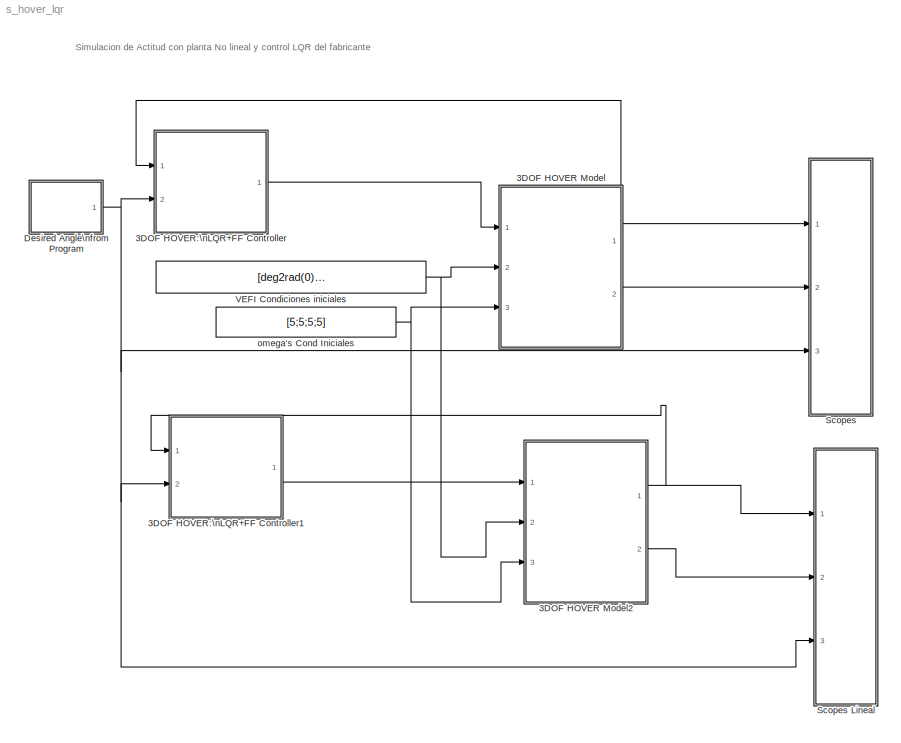
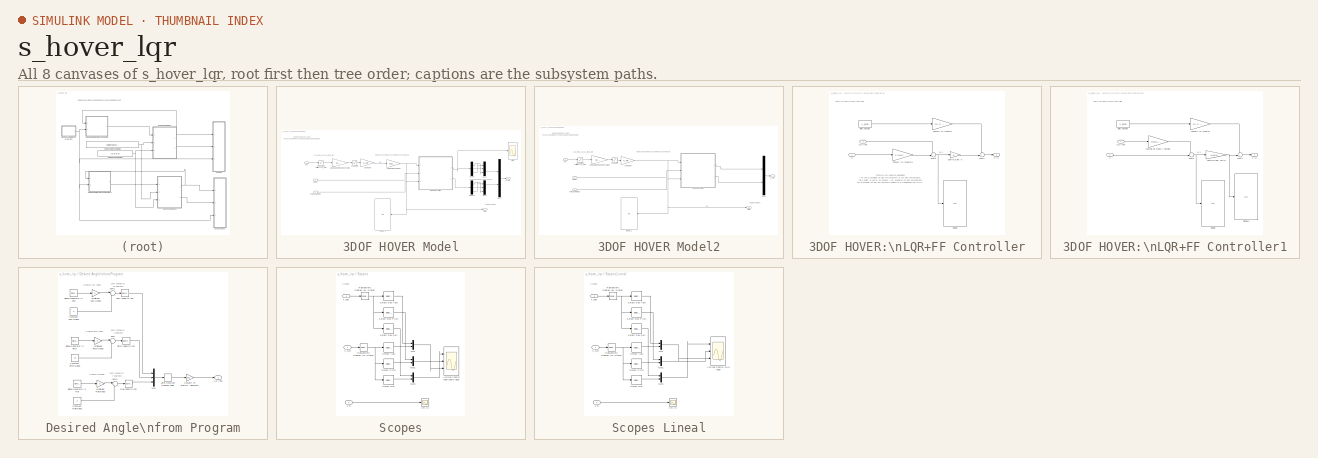
[diagram: thumbnail index - all 8 canvases of the model, root first then tree order]
MODEL s_hover_lqr
KIND model
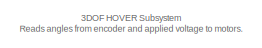
[diagram: 3DOF HOVER Model - part 1/2, top left region]
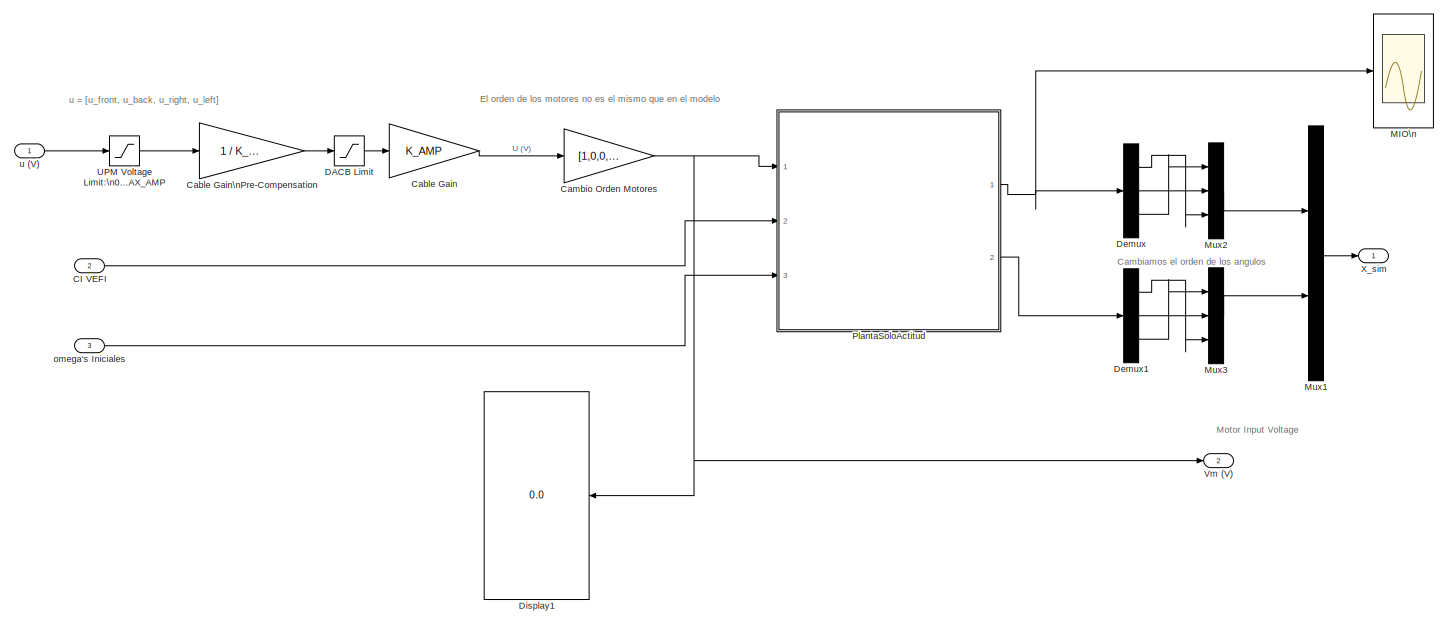
[diagram: 3DOF HOVER Model - part 2/2, most of the canvas]
BLOCK [SubSystem] 3DOF HOVER Model
  FunctionWithSeparateData = off
  MaskHideContents = off
  MinAlgLoopOccurrences = off
  Opaque = off
  Ports = [3, 2]
  PropExecContextOutsideSubsystem = off
  RTWSystemCode = Auto
  RequestExecContextInheritance = off
  SID = 1
BLOCK [Inport] 3DOF HOVER Model/CI VEFI
  IconDisplay = Port number
  Port = 2
  SID = 64
BLOCK [Gain] 3DOF HOVER Model/Cable Gain
  Gain = K_AMP
  Multiplication = Matrix(K*u)
  SID = 3
BLOCK [Gain] 3DOF HOVER Model/Cable Gain\nPre-Compensation
  Gain = 1 / K_AMP
  Multiplication = Matrix(K*u)
  SID = 4
BLOCK [Gain] 3DOF HOVER Model/Cambio Orden Motores
  Gain = [1,0,0,0;0,0,1,0;0,1,0,0;0,0,0,1]
  Multiplication = Matrix(K*u)
  SID = 101
BLOCK [Saturate] 3DOF HOVER Model/DACB Limit
  InputPortMap = u0
  LowerLimit = -VMAX_DAC
  Ports = [1, 1]
  SID = 5
  UpperLimit = VMAX_DAC
BLOCK [Demux] 3DOF HOVER Model/Demux
  DisplayOption = bar
  Outputs = 3
  Ports = [1, 3]
  SID = 86
BLOCK [Demux] 3DOF HOVER Model/Demux1
  DisplayOption = bar
  Outputs = 3
  Ports = [1, 3]
  SID = 89
BLOCK [Display] 3DOF HOVER Model/Display1
  Decimation = 1
  Lockdown = off
  Ports = [1]
  SID = 102
BLOCK [Scope] 3DOF HOVER Model/MIO\n
  DataFormat = Array
  Floating = off
  LimitDataPoints = off
  NumInputPorts = 1
  Ports = [1]
  SID = 92
  SampleTime = 0
  SaveName = ScopeData1
  TickLabels = on
  TimeRange = 20
  YMax = 0.0075
  YMin = 0.00325
BLOCK [Mux] 3DOF HOVER Model/Mux1
  DisplayOption = bar
  Inputs = 2
  Ports = [2, 1]
  SID = 10
BLOCK [Mux] 3DOF HOVER Model/Mux2
  DisplayOption = bar
  Inputs = 3
  Ports = [3, 1]
  SID = 88
BLOCK [Mux] 3DOF HOVER Model/Mux3
  DisplayOption = bar
  Inputs = 3
  Ports = [3, 1]
  SID = 90
BLOCK [ModelReference] 3DOF HOVER Model/PlantaSoloActitud
  CopyOfModelName = PlantaSoloActitud
  DefaultDataLogging = on
  ModelNameDialog = PlantaSoloActitud
  ModelReferenceVersion = 1.26
  Ports = [3, 2]
  SID = 63
BLOCK [Saturate] 3DOF HOVER Model/UPM Voltage Limit:\n0 to VMAX_AMP
  InputPortMap = u0
  LowerLimit = 0
  Ports = [1, 1]
  SID = 12
  UpperLimit = VMAX_AMP
BLOCK [Outport] 3DOF HOVER Model/Vm (V)
  IconDisplay = Port number
  Port = 2
  SID = 14
BLOCK [Outport] 3DOF HOVER Model/X_sim
  IconDisplay = Port number
  SID = 13
BLOCK [Inport] 3DOF HOVER Model/omega's Iniciales
  IconDisplay = Port number
  Port = 3
  SID = 65
BLOCK [Inport] 3DOF HOVER Model/u (V)
  IconDisplay = Port number
  SID = 2
BLOCK [SubSystem] 3DOF HOVER Model2
  FunctionWithSeparateData = off
  MaskHideContents = off
  MinAlgLoopOccurrences = off
  Opaque = off
  Ports = [3, 2]
  PropExecContextOutsideSubsystem = off
  RTWSystemCode = Auto
  RequestExecContextInheritance = off
  SID = 305
BLOCK [Inport] 3DOF HOVER Model2/CI VEFI
  IconDisplay = Port number
  Port = 2
  SID = 307
BLOCK [Gain] 3DOF HOVER Model2/Cable Gain
  Gain = K_AMP
  Multiplication = Matrix(K*u)
  SID = 309
BLOCK [Gain] 3DOF HOVER Model2/Cable Gain\nPre-Compensation
  Gain = 1 / K_AMP
  Multiplication = Matrix(K*u)
  SID = 310
BLOCK [Saturate] 3DOF HOVER Model2/DACB Limit
  InputPortMap = u0
  LowerLimit = -VMAX_DAC
  Ports = [1, 1]
  SID = 312
  UpperLimit = VMAX_DAC
BLOCK [Display] 3DOF HOVER Model2/Display1
  Decimation = 1
  Lockdown = off
  Ports = [1]
  SID = 337
BLOCK [Mux] 3DOF HOVER Model2/Mux1
  DisplayOption = bar
  Inputs = 2
  Ports = [2, 1]
  SID = 320
BLOCK [ModelReference] 3DOF HOVER Model2/PlantaSoloActitud
  CopyOfModelName = PlantaSoloActitud
  DefaultDataLogging = off
  ModelNameDialog = PlantaSoloActitud
  ModelReferenceVersion = 1.26
  Ports = [3, 2]
  SID = 327
BLOCK [Saturate] 3DOF HOVER Model2/UPM Voltage Limit:\n0 to VMAX_AMP
  InputPortMap = u0
  LowerLimit = 0
  Ports = [1, 1]
  SID = 328
  UpperLimit = VMAX_AMP
BLOCK [Outport] 3DOF HOVER Model2/Vm (V)
  IconDisplay = Port number
  Port = 2
  SID = 330
BLOCK [Outport] 3DOF HOVER Model2/X_sim
  IconDisplay = Port number
  SID = 329
BLOCK [Inport] 3DOF HOVER Model2/omega's Iniciales
  IconDisplay = Port number
  Port = 3
  SID = 308
BLOCK [Inport] 3DOF HOVER Model2/u (V)
  IconDisplay = Port number
  SID = 306
BLOCK [SubSystem] 3DOF HOVER:\nLQR+FF Controller
  FunctionWithSeparateData = off
  MaskHideContents = off
  MinAlgLoopOccurrences = off
  Opaque = off
  Ports = [2, 1]
  PropExecContextOutsideSubsystem = off
  RTWSystemCode = Auto
  RequestExecContextInheritance = off
  SID = 15
BLOCK [Constant] 3DOF HOVER:\nLQR+FF Controller/Bias Voltage
  SID = 18
  Value = V_bias
BLOCK [Gain] 3DOF HOVER:\nLQR+FF Controller/Control Gain: K
  Gain = K
  Multiplication = Matrix(K*u)
  OutDataTypeStr = Inherit: Inherit via internal rule
  ParamDataTypeStr = Inherit: Inherit via internal rule
  SID = 19
  SaturateOnIntegerOverflow = off
BLOCK [Gain] 3DOF HOVER:\nLQR+FF Controller/Convert to \nVector
  Gain = [1; 1; 1; 1]
  Multiplication = Matrix(K*u)
  OutDataTypeStr = Inherit: Inherit via internal rule
  ParamDataTypeStr = Inherit: Inherit via internal rule
  SID = 20
  SaturateOnIntegerOverflow = off
BLOCK [Gain] 3DOF HOVER:\nLQR+FF Controller/Convert to \nVector1
  Gain = [-1,0,0,0,0,0;0,1,0,0,0,0;0,0,1,0,0,0;0,0,0,-1,0,0;0,0,0,0,1,0;0,0,0,0,0,1]
  Multiplication = Matrix(K*u)
  OutDataTypeStr = Inherit: Inherit via internal rule
  ParamDataTypeStr = Inherit: Inherit via internal rule
  SID = 97
  SaturateOnIntegerOverflow = off
BLOCK [Display] 3DOF HOVER:\nLQR+FF Controller/Display
  Decimation = 1
  Lockdown = off
  Ports = [1]
  SID = 98
BLOCK [Sum] 3DOF HOVER:\nLQR+FF Controller/Sum4
  IconShape = round
  InputSameDT = off
  Inputs = ++|
  OutDataTypeStr = Inherit: Inherit via internal rule
  Ports = [2, 1]
  SID = 21
  SaturateOnIntegerOverflow = off
BLOCK [Sum] 3DOF HOVER:\nLQR+FF Controller/Sum5
  IconShape = round
  InputSameDT = off
  Inputs = +-|
  OutDataTypeStr = Inherit: Inherit via internal rule
  Ports = [2, 1]
  SID = 22
  SaturateOnIntegerOverflow = off
BLOCK [Inport] 3DOF HOVER:\nLQR+FF Controller/X
  IconDisplay = Port number
  SID = 16
BLOCK [Inport] 3DOF HOVER:\nLQR+FF Controller/X_d (rad)
  IconDisplay = Port number
  Port = 2
  SID = 17
BLOCK [Outport] 3DOF HOVER:\nLQR+FF Controller/u (V)
  IconDisplay = Port number
  SID = 23
BLOCK [SubSystem] 3DOF HOVER:\nLQR+FF Controller1
  FunctionWithSeparateData = off
  MaskHideContents = off
  MinAlgLoopOccurrences = off
  Opaque = off
  Ports = [2, 1]
  PropExecContextOutsideSubsystem = off
  RTWSystemCode = Auto
  RequestExecContextInheritance = off
  SID = 283
BLOCK [Constant] 3DOF HOVER:\nLQR+FF Controller1/Bias Voltage
  SID = 286
  Value = V_bias
BLOCK [Gain] 3DOF HOVER:\nLQR+FF Controller1/Cambio de orden y sentido
  Gain = [0,0,1,0,0,0;0,1,0,0,0,0;-1,0,0,0,0,0;0,0,0,0,0,1;0,0,0,0,1,0;0,0,0,-1,0,0]
  Multiplication = Matrix(K*u)
  OutDataTypeStr = Inherit: Inherit via internal rule
  ParamDataTypeStr = Inherit: Inherit via internal rule
  SID = 335
  SaturateOnIntegerOverflow = off
BLOCK [Gain] 3DOF HOVER:\nLQR+FF Controller1/Control Gain: KMIO
  Gain = KMIO
  Multiplication = Matrix(K*u) (u vector)
  OutDataTypeStr = Inherit: Inherit via internal rule
  ParamDataTypeStr = Inherit: Inherit via internal rule
  SID = 287
  SaturateOnIntegerOverflow = off
BLOCK [Gain] 3DOF HOVER:\nLQR+FF Controller1/Convert to \nVector
  Gain = [1; 1; 1; 1]
  Multiplication = Matrix(K*u)
  OutDataTypeStr = Inherit: Inherit via internal rule
  ParamDataTypeStr = Inherit: Inherit via internal rule
  SID = 288
  SaturateOnIntegerOverflow = off
BLOCK [Display] 3DOF HOVER:\nLQR+FF Controller1/Display
  Decimation = 1
  Lockdown = off
  Ports = [1]
  SID = 290
BLOCK [Display] 3DOF HOVER:\nLQR+FF Controller1/Display1
  Decimation = 1
  Lockdown = off
  Ports = [1]
  SID = 338
BLOCK [Sum] 3DOF HOVER:\nLQR+FF Controller1/Sum4
  IconShape = round
  InputSameDT = off
  Inputs = ++|
  OutDataTypeStr = Inherit: Inherit via internal rule
  Ports = [2, 1]
  SID = 291
  SaturateOnIntegerOverflow = off
BLOCK [Sum] 3DOF HOVER:\nLQR+FF Controller1/Sum5
  IconShape = round
  InputSameDT = off
  Inputs = +-|
  OutDataTypeStr = Inherit: Inherit via internal rule
  Ports = [2, 1]
  SID = 292
  SaturateOnIntegerOverflow = off
BLOCK [Inport] 3DOF HOVER:\nLQR+FF Controller1/X
  IconDisplay = Port number
  SID = 284
BLOCK [Inport] 3DOF HOVER:\nLQR+FF Controller1/X_d (rad)
  IconDisplay = Port number
  Port = 2
  SID = 285
BLOCK [Outport] 3DOF HOVER:\nLQR+FF Controller1/u (V)
  IconDisplay = Port number
  SID = 293
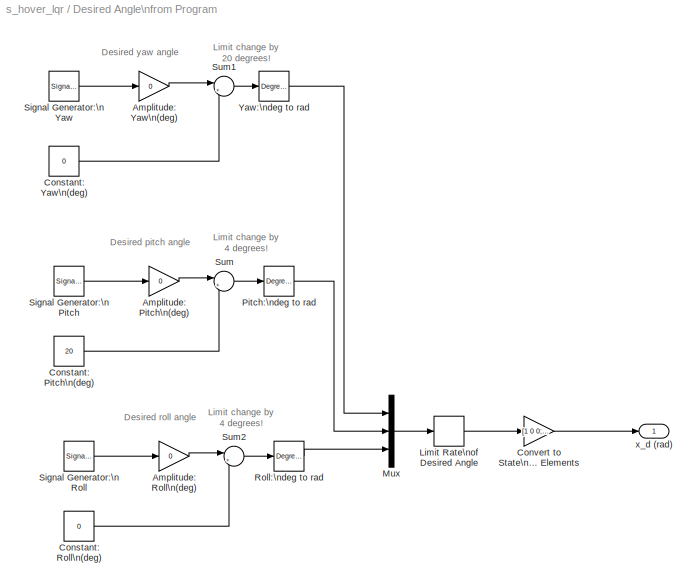
BLOCK [SubSystem] Desired Angle\nfrom Program
  FunctionWithSeparateData = off
  MaskHideContents = off
  MinAlgLoopOccurrences = off
  Opaque = off
  Ports = [0, 1]
  PropExecContextOutsideSubsystem = off
  RTWSystemCode = Auto
  RequestExecContextInheritance = off
  SID = 24
BLOCK [Gain] Desired Angle\nfrom Program/Amplitude: Pitch\n(deg)
  Gain = 0
  OutDataTypeStr = Inherit: Inherit via internal rule
  ParamDataTypeStr = Inherit: Inherit via internal rule
  SID = 25
  SaturateOnIntegerOverflow = off
BLOCK [Gain] Desired Angle\nfrom Program/Amplitude: Roll\n(deg)
  Gain = 0
  OutDataTypeStr = Inherit: Inherit via internal rule
  ParamDataTypeStr = Inherit: Inherit via internal rule
  SID = 26
  SaturateOnIntegerOverflow = off
BLOCK [Gain] Desired Angle\nfrom Program/Amplitude: Yaw\n(deg)
  Gain = 0
  OutDataTypeStr = Inherit: Inherit via internal rule
  ParamDataTypeStr = Inherit: Inherit via internal rule
  SID = 27
  SaturateOnIntegerOverflow = off
BLOCK [Constant] Desired Angle\nfrom Program/Constant: Pitch\n(deg)
  SID = 28
  Value = 20
BLOCK [Constant] Desired Angle\nfrom Program/Constant: Roll\n(deg)
  SID = 29
  Value = 0
BLOCK [Constant] Desired Angle\nfrom Program/Constant: Yaw\n(deg)
  SID = 30
  Value = 0
BLOCK [Gain] Desired Angle\nfrom Program/Convert to State\nwith 6 Elements
  Gain = [1 0 0; 0 1 0; 0 0 1; 0 0 0; 0 0 0; 0 0 0];
  Multiplication = Matrix(K*u)
  OutDataTypeStr = Inherit: Inherit via internal rule
  ParamDataTypeStr = Inherit: Inherit via internal rule
  SID = 31
  SaturateOnIntegerOverflow = off
BLOCK [RateLimiter] Desired Angle\nfrom Program/Limit Rate\nof Desired Angle
  FallingSlewLimit = -CMD_RATE_LIMIT
  RisingSlewLimit = CMD_RATE_LIMIT
  SID = 32
BLOCK [Mux] Desired Angle\nfrom Program/Mux
  DisplayOption = bar
  Inputs = 3
  Ports = [3, 1]
  SID = 33
BLOCK [Reference] Desired Angle\nfrom Program/Pitch:\ndeg to rad  REF=simulink_extras/Transformations/Degrees to\nRadians
  FunctionWithSeparateData = off
  GeneratePreprocessorConditionals = off
  Ports = [1, 1]
  RTWMemSecDataConstants = Inherit from model
  RTWMemSecDataInternal = Inherit from model
  RTWMemSecDataParameters = Inherit from model
  RTWMemSecFuncExecute = Inherit from model
  RTWMemSecFuncInitTerm = Inherit from model
  SID = 34
  ShowPortLabels = FromPortIcon
  SourceBlock = simulink_extras/Transformations/Degrees to\nRadians
  SourceType = DegreesToRadians
  SystemSampleTime = -1
BLOCK [Reference] Desired Angle\nfrom Program/Roll:\ndeg to rad  REF=simulink_extras/Transformations/Degrees to\nRadians
  FunctionWithSeparateData = off
  GeneratePreprocessorConditionals = off
  Ports = [1, 1]
  RTWMemSecDataConstants = Inherit from model
  RTWMemSecDataInternal = Inherit from model
  RTWMemSecDataParameters = Inherit from model
  RTWMemSecFuncExecute = Inherit from model
  RTWMemSecFuncInitTerm = Inherit from model
  SID = 35
  ShowPortLabels = FromPortIcon
  SourceBlock = simulink_extras/Transformations/Degrees to\nRadians
  SourceType = DegreesToRadians
  SystemSampleTime = -1
BLOCK [SignalGenerator] Desired Angle\nfrom Program/Signal Generator:\nPitch
  Frequency = 0.0000001
  Ports = [0, 1]
  SID = 36
  WaveForm = square
BLOCK [SignalGenerator] Desired Angle\nfrom Program/Signal Generator:\nRoll
  Frequency = 0.08
  Ports = [0, 1]
  SID = 37
  WaveForm = square
BLOCK [SignalGenerator] Desired Angle\nfrom Program/Signal Generator:\nYaw
  Frequency = 0.04
  Ports = [0, 1]
  SID = 38
  WaveForm = square
BLOCK [Sum] Desired Angle\nfrom Program/Sum
  IconShape = round
  InputSameDT = off
  Inputs = |++
  OutDataTypeStr = Inherit: Inherit via internal rule
  Ports = [2, 1]
  SID = 39
  SaturateOnIntegerOverflow = off
BLOCK [Sum] Desired Angle\nfrom Program/Sum1
  IconShape = round
  InputSameDT = off
  Inputs = |++
  OutDataTypeStr = Inherit: Inherit via internal rule
  Ports = [2, 1]
  SID = 40
  SaturateOnIntegerOverflow = off
BLOCK [Sum] Desired Angle\nfrom Program/Sum2
  IconShape = round
  InputSameDT = off
  Inputs = |++
  OutDataTypeStr = Inherit: Inherit via internal rule
  Ports = [2, 1]
  SID = 41
  SaturateOnIntegerOverflow = off
BLOCK [Reference] Desired Angle\nfrom Program/Yaw:\ndeg to rad  REF=simulink_extras/Transformations/Degrees to\nRadians
  FunctionWithSeparateData = off
  GeneratePreprocessorConditionals = off
  Ports = [1, 1]
  RTWMemSecDataConstants = Inherit from model
  RTWMemSecDataInternal = Inherit from model
  RTWMemSecDataParameters = Inherit from model
  RTWMemSecFuncExecute = Inherit from model
  RTWMemSecFuncInitTerm = Inherit from model
  SID = 42
  ShowPortLabels = FromPortIcon
  SourceBlock = simulink_extras/Transformations/Degrees to\nRadians
  SourceType = DegreesToRadians
  SystemSampleTime = -1
BLOCK [Outport] Desired Angle\nfrom Program/x_d (rad)
  IconDisplay = Port number
  SID = 43
BLOCK [SubSystem] Scopes
  FunctionWithSeparateData = off
  MaskHideContents = off
  MinAlgLoopOccurrences = off
  Opaque = off
  Ports = [3]
  PropExecContextOutsideSubsystem = off
  RTWSystemCode = Auto
  RequestExecContextInheritance = off
  SID = 44
BLOCK [SubSystem] Scopes Lineal
  FunctionWithSeparateData = off
  MaskHideContents = off
  MinAlgLoopOccurrences = off
  Opaque = off
  Ports = [3]
  PropExecContextOutsideSubsystem = off
  RTWSystemCode = Auto
  RequestExecContextInheritance = off
  SID = 124
BLOCK [Scope] Scopes Lineal/Actitud Control MIO (deg)
  DataFormat = StructureWithTime
  Floating = off
  LimitDataPoints = off
  NumInputPorts = 3
  Ports = [3]
  SID = 128
  SampleTime = 0
  SaveName = Ensayo1
  TickLabels = on
  TimeRange = 20
  YMax = 0.00055~20~0
  YMin = 0~-0~-0.00175
  ZoomMode = yonly
BLOCK [Mux] Scopes Lineal/Mux
  DisplayOption = bar
  Inputs = 2
  Ports = [2, 1]
  SID = 129
BLOCK [Mux] Scopes Lineal/Mux1
  DisplayOption = bar
  Inputs = 2
  Ports = [2, 1]
  SID = 130
BLOCK [Mux] Scopes Lineal/Mux2
  DisplayOption = bar
  Inputs = 2
  Ports = [2, 1]
  SID = 131
BLOCK [Reference] Scopes Lineal/Radians\nto Degrees -\nDes. States  REF=simulink_extras/Transformations/Radians\nto Degrees
  FunctionWithSeparateData = off
  GeneratePreprocessorConditionals = off
  Ports = [1, 1]
  RTWMemSecDataConstants = Inherit from model
  RTWMemSecDataInternal = Inherit from model
  RTWMemSecDataParameters = Inherit from model
  RTWMemSecFuncExecute = Inherit from model
  RTWMemSecFuncInitTerm = Inherit from model
  SID = 132
  ShowPortLabels = FromPortIcon
  SourceBlock = simulink_extras/Transformations/Radians\nto Degrees
  SourceType = RadiansToDegrees
  SystemSampleTime = -1
BLOCK [Reference] Scopes Lineal/Radians\nto Degrees -\nSim States  REF=simulink_extras/Transformations/Radians\nto Degrees
  FunctionWithSeparateData = off
  GeneratePreprocessorConditionals = off
  Ports = [1, 1]
  RTWMemSecDataConstants = Inherit from model
  RTWMemSecDataInternal = Inherit from model
  RTWMemSecDataParameters = Inherit from model
  RTWMemSecFuncExecute = Inherit from model
  RTWMemSecFuncInitTerm = Inherit from model
  SID = 133
  ShowPortLabels = FromPortIcon
  SourceBlock = simulink_extras/Transformations/Radians\nto Degrees
  SourceType = RadiansToDegrees
  SystemSampleTime = -1
BLOCK [Selector] Scopes Lineal/Select Des Pitch
  IndexOptions = Index vector (dialog)
  Indices = 2
  InputPortWidth = 6
  OutputSizes = 1
  Ports = [1, 1]
  SID = 134
BLOCK [Selector] Scopes Lineal/Select Des Roll
  IndexOptions = Index vector (dialog)
  Indices = 3
  InputPortWidth = 6
  OutputSizes = 1
  Ports = [1, 1]
  SID = 135
BLOCK [Selector] Scopes Lineal/Select Des Yaw
  IndexOptions = Index vector (dialog)
  Indices = 1
  InputPortWidth = 6
  OutputSizes = 1
  Ports = [1, 1]
  SID = 136
BLOCK [Selector] Scopes Lineal/Select Pitch
  IndexOptions = Index vector (dialog)
  Indices = 2
  InputPortWidth = 6
  OutputSizes = 1
  Ports = [1, 1]
  SID = 137
BLOCK [Selector] Scopes Lineal/Select Roll
  IndexOptions = Index vector (dialog)
  Indices = 3
  InputPortWidth = 6
  OutputSizes = 1
  Ports = [1, 1]
  SID = 138
BLOCK [Selector] Scopes Lineal/Select Yaw
  IndexOptions = Index vector (dialog)
  Indices = 1
  InputPortWidth = 6
  OutputSizes = 1
  Ports = [1, 1]
  SID = 139
BLOCK [Inport] Scopes Lineal/Vm
  IconDisplay = Port number
  Port = 2
  SID = 126
BLOCK [Scope] Scopes Lineal/Vm (V)
  DataFormat = Array
  Floating = off
  LimitDataPoints = off
  NumInputPorts = 1
  Ports = [1]
  SID = 140
  SampleTime = 0
  SaveName = ScopeData4
  TickLabels = on
  TimeRange = 20
  YMax = 25
  YMin = 0
BLOCK [Inport] Scopes Lineal/X_des
  IconDisplay = Port number
  Port = 3
  SID = 127
BLOCK [Inport] Scopes Lineal/X_sim
  IconDisplay = Port number
  SID = 125
BLOCK [Scope] Scopes/Actitud Control Fabricante (deg)
  DataFormat = StructureWithTime
  Floating = off
  LimitDataPoints = off
  NumInputPorts = 3
  Ports = [3]
  SID = 72
  SampleTime = 0
  SaveName = Ensayo1
  TickLabels = on
  TimeRange = 20
  YMax = 1.4e-008~20~0.0008
  YMin = 0~0~0
  ZoomMode = yonly
BLOCK [Mux] Scopes/Mux
  DisplayOption = bar
  Inputs = 2
  Ports = [2, 1]
  SID = 48
BLOCK [Mux] Scopes/Mux1
  DisplayOption = bar
  Inputs = 2
  Ports = [2, 1]
  SID = 49
BLOCK [Mux] Scopes/Mux2
  DisplayOption = bar
  Inputs = 2
  Ports = [2, 1]
  SID = 50
BLOCK [Reference] Scopes/Radians\nto Degrees -\nDes. States  REF=simulink_extras/Transformations/Radians\nto Degrees
  FunctionWithSeparateData = off
  GeneratePreprocessorConditionals = off
  Ports = [1, 1]
  RTWMemSecDataConstants = Inherit from model
  RTWMemSecDataInternal = Inherit from model
  RTWMemSecDataParameters = Inherit from model
  RTWMemSecFuncExecute = Inherit from model
  RTWMemSecFuncInitTerm = Inherit from model
  SID = 51
  ShowPortLabels = FromPortIcon
  SourceBlock = simulink_extras/Transformations/Radians\nto Degrees
  SourceType = RadiansToDegrees
  SystemSampleTime = -1
BLOCK [Reference] Scopes/Radians\nto Degrees -\nSim States  REF=simulink_extras/Transformations/Radians\nto Degrees
  FunctionWithSeparateData = off
  GeneratePreprocessorConditionals = off
  Ports = [1, 1]
  RTWMemSecDataConstants = Inherit from model
  RTWMemSecDataInternal = Inherit from model
  RTWMemSecDataParameters = Inherit from model
  RTWMemSecFuncExecute = Inherit from model
  RTWMemSecFuncInitTerm = Inherit from model
  SID = 52
  ShowPortLabels = FromPortIcon
  SourceBlock = simulink_extras/Transformations/Radians\nto Degrees
  SourceType = RadiansToDegrees
  SystemSampleTime = -1
BLOCK [Selector] Scopes/Select Des Pitch
  IndexOptions = Index vector (dialog)
  Indices = 2
  InputPortWidth = 6
  OutputSizes = 1
  Ports = [1, 1]
  SID = 53
BLOCK [Selector] Scopes/Select Des Roll
  IndexOptions = Index vector (dialog)
  Indices = 3
  InputPortWidth = 6
  OutputSizes = 1
  Ports = [1, 1]
  SID = 54
BLOCK [Selector] Scopes/Select Des Yaw
  IndexOptions = Index vector (dialog)
  Indices = 1
  InputPortWidth = 6
  OutputSizes = 1
  Ports = [1, 1]
  SID = 55
BLOCK [Selector] Scopes/Select Pitch
  IndexOptions = Index vector (dialog)
  Indices = 2
  InputPortWidth = 6
  OutputSizes = 1
  Ports = [1, 1]
  SID = 56
BLOCK [Selector] Scopes/Select Roll
  IndexOptions = Index vector (dialog)
  Indices = 3
  InputPortWidth = 6
  OutputSizes = 1
  Ports = [1, 1]
  SID = 57
BLOCK [Selector] Scopes/Select Yaw
  IndexOptions = Index vector (dialog)
  Indices = 1
  InputPortWidth = 6
  OutputSizes = 1
  Ports = [1, 1]
  SID = 58
BLOCK [Inport] Scopes/Vm
  IconDisplay = Port number
  Port = 2
  SID = 46
BLOCK [Scope] Scopes/Vm (V)
  DataFormat = Array
  Floating = off
  LimitDataPoints = off
  NumInputPorts = 1
  Ports = [1]
  SID = 59
  SampleTime = 0
  SaveName = ScopeData4
  TickLabels = on
  TimeRange = 20
  YMax = 25
  YMin = 0
BLOCK [Inport] Scopes/X_des
  IconDisplay = Port number
  Port = 3
  SID = 47
BLOCK [Inport] Scopes/X_sim
  IconDisplay = Port number
  SID = 45
BLOCK [Constant] VEFI Condiciones iniciales
  SID = 69
  Value = [deg2rad(0);deg2rad(0);deg2rad(0);0;0;0]
BLOCK [Constant] omega's Cond Iniciales
  SID = 70
  Value = [5;5;5;5]
ANNOTATION (root): Simulacion de Actitud con planta No lineal y control LQR del fabricante
ANNOTATION 3DOF HOVER Model: 3DOF HOVER Subsystem\nReads angles from encoder and applied voltage to motors.
ANNOTATION 3DOF HOVER Model: Cambiamos el orden de los angulos
ANNOTATION 3DOF HOVER Model: El orden de los motores no es el mismo que en el modelo
ANNOTATION 3DOF HOVER Model: Motor Input Voltage
ANNOTATION 3DOF HOVER Model: u = [u_front, u_back, u_right, u_left]
ANNOTATION 3DOF HOVER Model2: 3DOF HOVER Subsystem\nReads angles from encoder and applied voltage to motors.
ANNOTATION 3DOF HOVER Model2: El orden de los motores no es el mismo que en el modelo
ANNOTATION 3DOF HOVER Model2: Motor Input Voltage
ANNOTATION 3DOF HOVER Model2: u = [u_front, u_back, u_right, u_left]
ANNOTATION 3DOF HOVER:\nLQR+FF Controller: 3DOF HOVER LQR+FF Controller
ANNOTATION 3DOF HOVER:\nLQR+FF Controller: Tenemos uns pequeña disquisicion \nY es que la definicion de ejes del fabricante no son ejes aeronauticos. \nPara utilizar el vector de angulos y vel. angulares en ejes aeronauticos \ncon la definicion de ejes del fabricante utilizamos la multiplicacion por la martiz
ANNOTATION 3DOF HOVER:\nLQR+FF Controller: Xd-X
ANNOTATION 3DOF HOVER:\nLQR+FF Controller1: 3DOF HOVER LQR+FF Controller
ANNOTATION 3DOF HOVER:\nLQR+FF Controller1: Xd-X
ANNOTATION Desired Angle\nfrom Program: Desired pitch angle
ANNOTATION Desired Angle\nfrom Program: Desired roll angle
ANNOTATION Desired Angle\nfrom Program: Desired yaw angle
ANNOTATION Desired Angle\nfrom Program: Limit change by \n20 degrees!
ANNOTATION Desired Angle\nfrom Program: Limit change by \n4 degrees!
ANNOTATION Scopes: Scopes
ANNOTATION Scopes Lineal: Scopes
LINE 3DOF HOVER Model/CI VEFI:1 -> 3DOF HOVER Model/PlantaSoloActitud:2
LINE 3DOF HOVER Model/Cable Gain:1 -> 3DOF HOVER Model/Cambio Orden Motores:1
LINE 3DOF HOVER Model/Cable Gain\nPre-Compensation:1 -> 3DOF HOVER Model/DACB Limit:1
NET 3DOF HOVER Model/Cambio Orden Motores:1 -> 3DOF HOVER Model/Display1:1, 3DOF HOVER Model/PlantaSoloActitud:1, 3DOF HOVER Model/Vm (V):1
LINE 3DOF HOVER Model/DACB Limit:1 -> 3DOF HOVER Model/Cable Gain:1
LINE 3DOF HOVER Model/Demux1:1 -> 3DOF HOVER Model/Mux3:3
LINE 3DOF HOVER Model/Demux1:2 -> 3DOF HOVER Model/Mux3:2
LINE 3DOF HOVER Model/Demux1:3 -> 3DOF HOVER Model/Mux3:1
LINE 3DOF HOVER Model/Demux:1 -> 3DOF HOVER Model/Mux2:3
LINE 3DOF HOVER Model/Demux:2 -> 3DOF HOVER Model/Mux2:2
LINE 3DOF HOVER Model/Demux:3 -> 3DOF HOVER Model/Mux2:1
LINE 3DOF HOVER Model/Mux1:1 -> 3DOF HOVER Model/X_sim:1
LINE 3DOF HOVER Model/Mux2:1 -> 3DOF HOVER Model/Mux1:1
LINE 3DOF HOVER Model/Mux3:1 -> 3DOF HOVER Model/Mux1:2
NET 3DOF HOVER Model/PlantaSoloActitud:1 -> 3DOF HOVER Model/Demux:1, 3DOF HOVER Model/MIO\n:1
LINE 3DOF HOVER Model/PlantaSoloActitud:2 -> 3DOF HOVER Model/Demux1:1
LINE 3DOF HOVER Model/UPM Voltage Limit:\n0 to VMAX_AMP:1 -> 3DOF HOVER Model/Cable Gain\nPre-Compensation:1
LINE 3DOF HOVER Model/omega's Iniciales:1 -> 3DOF HOVER Model/PlantaSoloActitud:3
LINE 3DOF HOVER Model/u (V):1 -> 3DOF HOVER Model/UPM Voltage Limit:\n0 to VMAX_AMP:1
LINE 3DOF HOVER Model2/CI VEFI:1 -> 3DOF HOVER Model2/PlantaSoloActitud:2
NET 3DOF HOVER Model2/Cable Gain:1 -> 3DOF HOVER Model2/Display1:1, 3DOF HOVER Model2/PlantaSoloActitud:1, 3DOF HOVER Model2/Vm (V):1
LINE 3DOF HOVER Model2/Cable Gain\nPre-Compensation:1 -> 3DOF HOVER Model2/DACB Limit:1
LINE 3DOF HOVER Model2/DACB Limit:1 -> 3DOF HOVER Model2/Cable Gain:1
LINE 3DOF HOVER Model2/Mux1:1 -> 3DOF HOVER Model2/X_sim:1
LINE 3DOF HOVER Model2/PlantaSoloActitud:1 -> 3DOF HOVER Model2/Mux1:1
LINE 3DOF HOVER Model2/PlantaSoloActitud:2 -> 3DOF HOVER Model2/Mux1:2
LINE 3DOF HOVER Model2/UPM Voltage Limit:\n0 to VMAX_AMP:1 -> 3DOF HOVER Model2/Cable Gain\nPre-Compensation:1
LINE 3DOF HOVER Model2/omega's Iniciales:1 -> 3DOF HOVER Model2/PlantaSoloActitud:3
LINE 3DOF HOVER Model2/u (V):1 -> 3DOF HOVER Model2/UPM Voltage Limit:\n0 to VMAX_AMP:1
NET 3DOF HOVER Model2:1 -> 3DOF HOVER:\nLQR+FF Controller1:1, Scopes Lineal:1
LINE 3DOF HOVER Model2:2 -> Scopes Lineal:2
NET 3DOF HOVER Model:1 -> 3DOF HOVER:\nLQR+FF Controller:1, Scopes:1
LINE 3DOF HOVER Model:2 -> Scopes:2
LINE 3DOF HOVER:\nLQR+FF Controller/Bias Voltage:1 -> 3DOF HOVER:\nLQR+FF Controller/Convert to \nVector:1
LINE 3DOF HOVER:\nLQR+FF Controller/Control Gain: K:1 -> 3DOF HOVER:\nLQR+FF Controller/Sum4:2
LINE 3DOF HOVER:\nLQR+FF Controller/Convert to \nVector1:1 -> 3DOF HOVER:\nLQR+FF Controller/Sum5:2
LINE 3DOF HOVER:\nLQR+FF Controller/Convert to \nVector:1 -> 3DOF HOVER:\nLQR+FF Controller/Sum4:1
LINE 3DOF HOVER:\nLQR+FF Controller/Sum4:1 -> 3DOF HOVER:\nLQR+FF Controller/u (V):1
NET 3DOF HOVER:\nLQR+FF Controller/Sum5:1 -> 3DOF HOVER:\nLQR+FF Controller/Control Gain: K:1, 3DOF HOVER:\nLQR+FF Controller/Display:1
LINE 3DOF HOVER:\nLQR+FF Controller/X:1 -> 3DOF HOVER:\nLQR+FF Controller/Convert to \nVector1:1
LINE 3DOF HOVER:\nLQR+FF Controller/X_d (rad):1 -> 3DOF HOVER:\nLQR+FF Controller/Sum5:1
LINE 3DOF HOVER:\nLQR+FF Controller1/Bias Voltage:1 -> 3DOF HOVER:\nLQR+FF Controller1/Convert to \nVector:1
LINE 3DOF HOVER:\nLQR+FF Controller1/Cambio de orden y sentido:1 -> 3DOF HOVER:\nLQR+FF Controller1/Sum5:1
NET 3DOF HOVER:\nLQR+FF Controller1/Control Gain: KMIO:1 -> 3DOF HOVER:\nLQR+FF Controller1/Display1:1, 3DOF HOVER:\nLQR+FF Controller1/Sum4:2
LINE 3DOF HOVER:\nLQR+FF Controller1/Convert to \nVector:1 -> 3DOF HOVER:\nLQR+FF Controller1/Sum4:1
LINE 3DOF HOVER:\nLQR+FF Controller1/Sum4:1 -> 3DOF HOVER:\nLQR+FF Controller1/u (V):1
NET 3DOF HOVER:\nLQR+FF Controller1/Sum5:1 -> 3DOF HOVER:\nLQR+FF Controller1/Control Gain: KMIO:1, 3DOF HOVER:\nLQR+FF Controller1/Display:1
LINE 3DOF HOVER:\nLQR+FF Controller1/X:1 -> 3DOF HOVER:\nLQR+FF Controller1/Sum5:2
LINE 3DOF HOVER:\nLQR+FF Controller1/X_d (rad):1 -> 3DOF HOVER:\nLQR+FF Controller1/Cambio de orden y sentido:1
LINE 3DOF HOVER:\nLQR+FF Controller1:1 -> 3DOF HOVER Model2:1
LINE 3DOF HOVER:\nLQR+FF Controller:1 -> 3DOF HOVER Model:1
LINE Desired Angle\nfrom Program/Amplitude: Pitch\n(deg):1 -> Desired Angle\nfrom Program/Sum:1
LINE Desired Angle\nfrom Program/Amplitude: Roll\n(deg):1 -> Desired Angle\nfrom Program/Sum2:1
LINE Desired Angle\nfrom Program/Amplitude: Yaw\n(deg):1 -> Desired Angle\nfrom Program/Sum1:1
LINE Desired Angle\nfrom Program/Constant: Pitch\n(deg):1 -> Desired Angle\nfrom Program/Sum:2
LINE Desired Angle\nfrom Program/Constant: Roll\n(deg):1 -> Desired Angle\nfrom Program/Sum2:2
LINE Desired Angle\nfrom Program/Constant: Yaw\n(deg):1 -> Desired Angle\nfrom Program/Sum1:2
LINE Desired Angle\nfrom Program/Convert to State\nwith 6 Elements:1 -> Desired Angle\nfrom Program/x_d (rad):1
LINE Desired Angle\nfrom Program/Limit Rate\nof Desired Angle:1 -> Desired Angle\nfrom Program/Convert to State\nwith 6 Elements:1
LINE Desired Angle\nfrom Program/Mux:1 -> Desired Angle\nfrom Program/Limit Rate\nof Desired Angle:1
LINE Desired Angle\nfrom Program/Pitch:\ndeg to rad:1 -> Desired Angle\nfrom Program/Mux:2
LINE Desired Angle\nfrom Program/Roll:\ndeg to rad:1 -> Desired Angle\nfrom Program/Mux:3
LINE Desired Angle\nfrom Program/Signal Generator:\nPitch:1 -> Desired Angle\nfrom Program/Amplitude: Pitch\n(deg):1
LINE Desired Angle\nfrom Program/Signal Generator:\nRoll:1 -> Desired Angle\nfrom Program/Amplitude: Roll\n(deg):1
LINE Desired Angle\nfrom Program/Signal Generator:\nYaw:1 -> Desired Angle\nfrom Program/Amplitude: Yaw\n(deg):1
LINE Desired Angle\nfrom Program/Sum1:1 -> Desired Angle\nfrom Program/Yaw:\ndeg to rad:1
LINE Desired Angle\nfrom Program/Sum2:1 -> Desired Angle\nfrom Program/Roll:\ndeg to rad:1
LINE Desired Angle\nfrom Program/Sum:1 -> Desired Angle\nfrom Program/Pitch:\ndeg to rad:1
LINE Desired Angle\nfrom Program/Yaw:\ndeg to rad:1 -> Desired Angle\nfrom Program/Mux:1
NET Desired Angle\nfrom Program:1 -> 3DOF HOVER:\nLQR+FF Controller1:2, 3DOF HOVER:\nLQR+FF Controller:2, Scopes Lineal:3, Scopes:3
LINE Scopes Lineal/Mux1:1 -> Scopes Lineal/Actitud Control MIO (deg):2
LINE Scopes Lineal/Mux2:1 -> Scopes Lineal/Actitud Control MIO (deg):1
LINE Scopes Lineal/Mux:1 -> Scopes Lineal/Actitud Control MIO (deg):3
NET Scopes Lineal/Radians\nto Degrees -\nDes. States:1 -> Scopes Lineal/Select Des Pitch:1, Scopes Lineal/Select Des Roll:1, Scopes Lineal/Select Des Yaw:1
NET Scopes Lineal/Radians\nto Degrees -\nSim States:1 -> Scopes Lineal/Select Pitch:1, Scopes Lineal/Select Roll:1, Scopes Lineal/Select Yaw:1
LINE Scopes Lineal/Select Des Pitch:1 -> Scopes Lineal/Mux1:1
LINE Scopes Lineal/Select Des Roll:1 -> Scopes Lineal/Mux2:1
LINE Scopes Lineal/Select Des Yaw:1 -> Scopes Lineal/Mux:1
LINE Scopes Lineal/Select Pitch:1 -> Scopes Lineal/Mux1:2
LINE Scopes Lineal/Select Roll:1 -> Scopes Lineal/Mux2:2
LINE Scopes Lineal/Select Yaw:1 -> Scopes Lineal/Mux:2
LINE Scopes Lineal/Vm:1 -> Scopes Lineal/Vm (V):1
LINE Scopes Lineal/X_des:1 -> Scopes Lineal/Radians\nto Degrees -\nDes. States:1
LINE Scopes Lineal/X_sim:1 -> Scopes Lineal/Radians\nto Degrees -\nSim States:1
LINE Scopes/Mux1:1 -> Scopes/Actitud Control Fabricante (deg):2
LINE Scopes/Mux2:1 -> Scopes/Actitud Control Fabricante (deg):1
LINE Scopes/Mux:1 -> Scopes/Actitud Control Fabricante (deg):3
NET Scopes/Radians\nto Degrees -\nDes. States:1 -> Scopes/Select Des Pitch:1, Scopes/Select Des Roll:1, Scopes/Select Des Yaw:1
NET Scopes/Radians\nto Degrees -\nSim States:1 -> Scopes/Select Pitch:1, Scopes/Select Roll:1, Scopes/Select Yaw:1
LINE Scopes/Select Des Pitch:1 -> Scopes/Mux1:1
LINE Scopes/Select Des Roll:1 -> Scopes/Mux2:1
LINE Scopes/Select Des Yaw:1 -> Scopes/Mux:1
LINE Scopes/Select Pitch:1 -> Scopes/Mux1:2
LINE Scopes/Select Roll:1 -> Scopes/Mux2:2
LINE Scopes/Select Yaw:1 -> Scopes/Mux:2
LINE Scopes/Vm:1 -> Scopes/Vm (V):1
LINE Scopes/X_des:1 -> Scopes/Radians\nto Degrees -\nDes. States:1
LINE Scopes/X_sim:1 -> Scopes/Radians\nto Degrees -\nSim States:1
NET VEFI Condiciones iniciales:1 -> 3DOF HOVER Model2:2, 3DOF HOVER Model:2
NET omega's Cond Iniciales:1 -> 3DOF HOVER Model2:3, 3DOF HOVER Model:3
note: NET lines group one-source signal fan-out (src -> all destinations, sorted); 1:1 wires keep LINE
